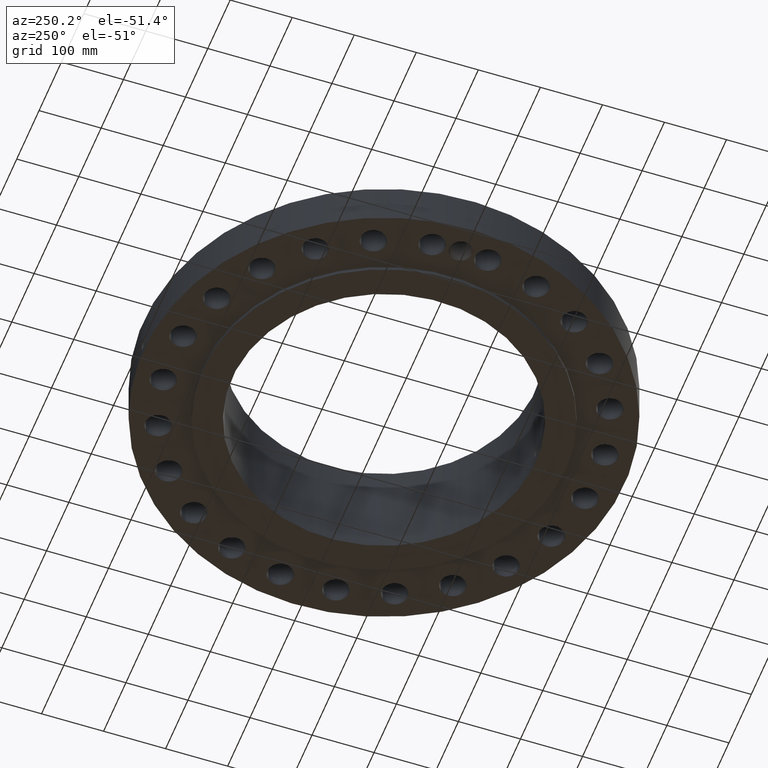
[diagram: clean part render]
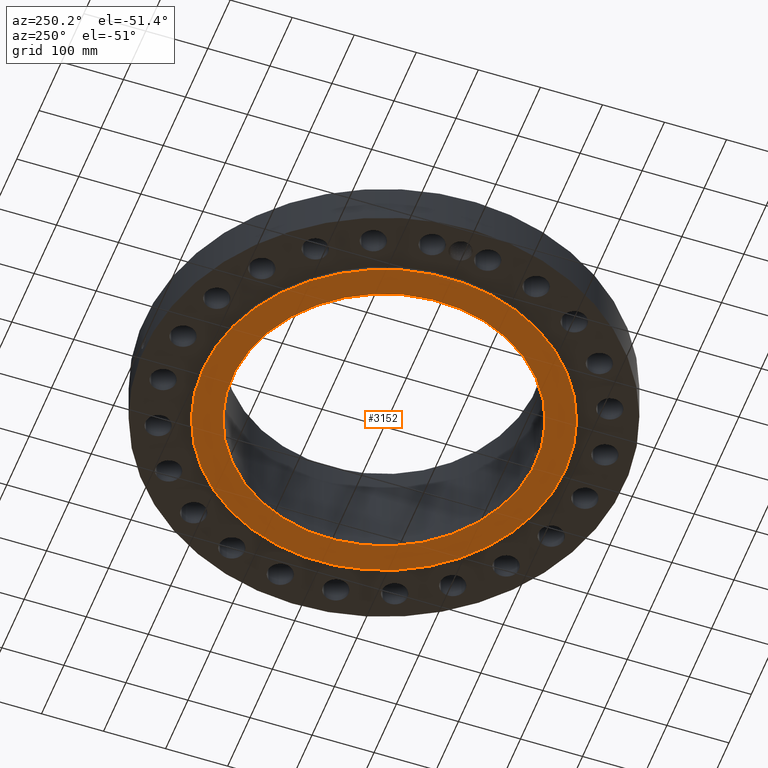
[diagram: same view with one face highlighted and labeled with its STEP entity id]
A machine part, auxiliary view. The second image highlights one B-rep face of the part: STEP entity #3152.
In plain terms, the highlighted planar face has unit normal (0, 0, -1).
Its self-contained STEP definition (entity closure, byte-faithful):
#1709=AXIS2_PLACEMENT_3D('Circle Axis2P3D',#1707,#1708,$) ;
#1735=AXIS2_PLACEMENT_3D('Circle Axis2P3D',#1733,#1734,$) ;
#3128=AXIS2_PLACEMENT_3D('Plane Axis2P3D',#3125,#3126,#3127) ;
#3136=AXIS2_PLACEMENT_3D('Circle Axis2P3D',#3134,#3135,$) ;
#3145=AXIS2_PLACEMENT_3D('Circle Axis2P3D',#3143,#3144,$) ;
#1707=CARTESIAN_POINT('Axis2P3D Location',(0.,0.,1.1189649382E-015)) ;
#1711=CARTESIAN_POINT('Vertex',(5.51339369397,10.0921994618,1.1189649382E-015)) ;
#1713=CARTESIAN_POINT('Vertex',(-5.51339369397,-10.0921994618,1.1189649382E-015)) ;
#1733=CARTESIAN_POINT('Axis2P3D Location',(0.,0.,1.1189649382E-015)) ;
#3125=CARTESIAN_POINT('Axis2P3D Location',(0.,9.62500000004,0.)) ;
#3134=CARTESIAN_POINT('Axis2P3D Location',(0.,0.,0.)) ;
#3138=CARTESIAN_POINT('Vertex',(4.61447080908,8.44673215823,-6.04241066631E-014)) ;
#3140=CARTESIAN_POINT('Vertex',(-4.61447080908,-8.44673215823,-6.04241066631E-014)) ;
#3143=CARTESIAN_POINT('Axis2P3D Location',(0.,0.,0.)) ;
#1708=DIRECTION('Axis2P3D Direction',(0.,0.,-0.0393700787402)) ;
#1734=DIRECTION('Axis2P3D Direction',(0.,0.,-0.0393700787402)) ;
#3126=DIRECTION('Axis2P3D Direction',(0.,0.,-0.0393700787402)) ;
#3127=DIRECTION('Axis2P3D XDirection',(0.0393700787402,0.,0.)) ;
#3135=DIRECTION('Axis2P3D Direction',(0.,0.,-0.0393700787402)) ;
#3144=DIRECTION('Axis2P3D Direction',(0.,0.,-0.0393700787402)) ;
#3131=ORIENTED_EDGE('',*,*,#1737,.T.) ;
#3132=ORIENTED_EDGE('',*,*,#1715,.T.) ;
#3149=ORIENTED_EDGE('',*,*,#3142,.F.) ;
#3150=ORIENTED_EDGE('',*,*,#3147,.F.) ;
#3151=FACE_BOUND('',#3148,.T.) ;
#3152=ADVANCED_FACE('PartBody',(#3133,#3151),#3129,.T.) ;
#1710=CIRCLE('generated circle',#1709,11.5) ;
#1736=CIRCLE('generated circle',#1735,11.5) ;
#3137=CIRCLE('generated circle',#3136,9.62500000004) ;
#3146=CIRCLE('generated circle',#3145,9.62500000004) ;
#1715=EDGE_CURVE('',#1712,#1714,#1710,.T.) ;
#1737=EDGE_CURVE('',#1714,#1712,#1736,.T.) ;
#3142=EDGE_CURVE('',#3139,#3141,#3137,.T.) ;
#3147=EDGE_CURVE('',#3141,#3139,#3146,.T.) ;
#3130=EDGE_LOOP('',(#3131,#3132)) ;
#3148=EDGE_LOOP('',(#3149,#3150)) ;
#3133=FACE_OUTER_BOUND('',#3130,.T.) ;
#3129=PLANE('',#3128) ;
#1712=VERTEX_POINT('',#1711) ;
#1714=VERTEX_POINT('',#1713) ;
#3139=VERTEX_POINT('',#3138) ;
#3141=VERTEX_POINT('',#3140) ;